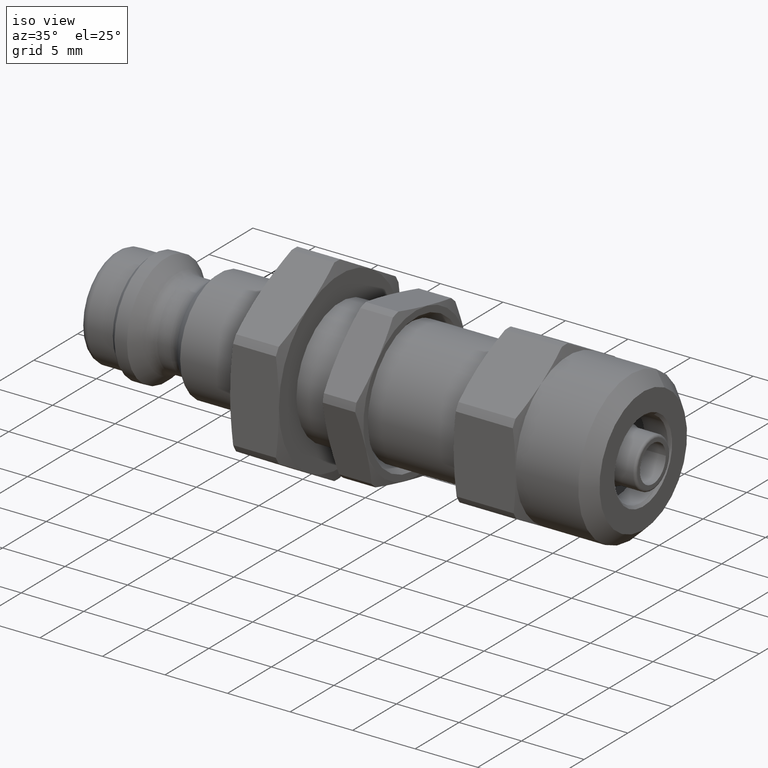
[diagram: clean part render]
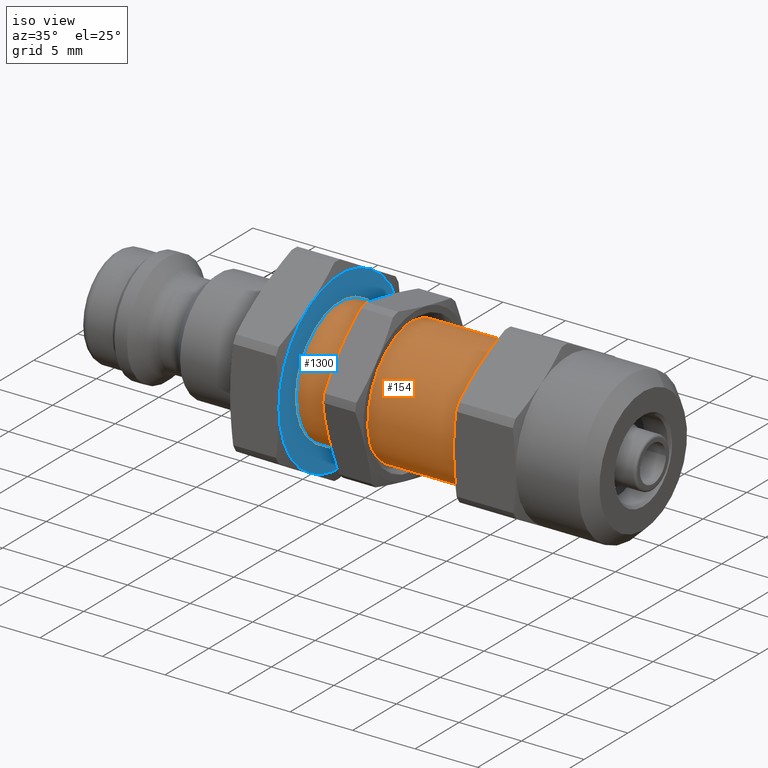
[diagram: same view with the hole feature highlighted: cylindrical wall and planar end face, labeled with their STEP entity ids]
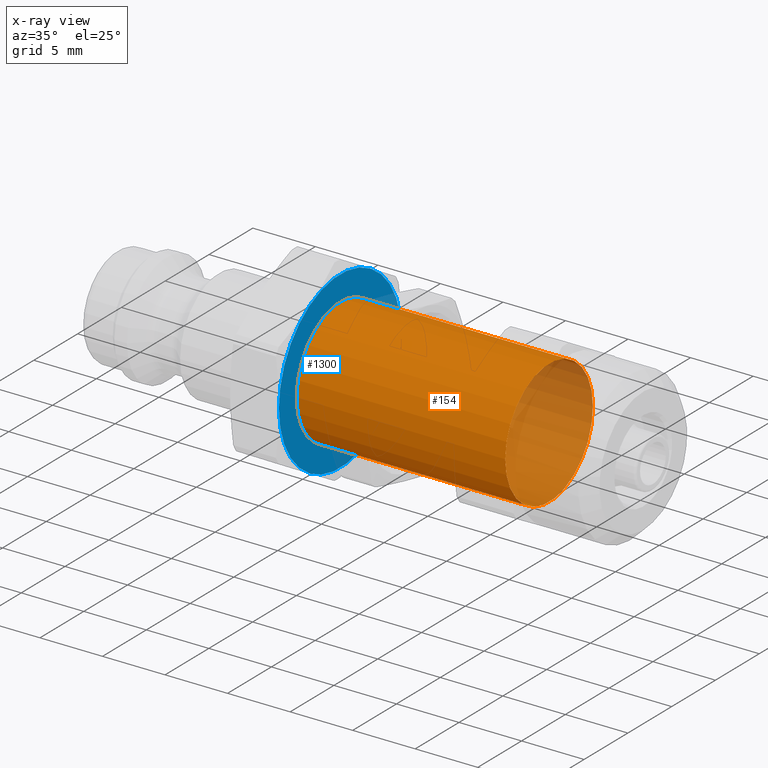
[diagram: x-ray of the same camera — body ghosted, the hole faces saturated]
A machine part, iso view. The highlighted faces form one hole feature of diameter 10 mm: the cylindrical wall (entity #154, orange) and its adjacent planar end face (entity #1300, blue) — they share a circular edge in the B-rep.
The next image is the same camera in x-ray (body ghosted, the hole faces saturated) — the bore reads through the body.
Wall:
#112=CARTESIAN_POINT('',(34.700000000000003,5.000000000000004,6.123234E-016));
#113=VERTEX_POINT('',#112);
#114=CARTESIAN_POINT('',(34.700000000000003,0.0,0.0));
#115=DIRECTION('',(1.0,0.0,0.0));
#116=DIRECTION('',(0.0,-1.0,0.0));
#117=AXIS2_PLACEMENT_3D('',#114,#115,#116);
#118=CIRCLE('',#117,5.000000000000004);
#119=EDGE_CURVE('',#113,#113,#118,.T.);
#135=CARTESIAN_POINT('',(26.699999999999999,0.0,0.0));
#136=DIRECTION('',(1.0,0.0,0.0));
#137=DIRECTION('',(0.0,1.0,0.0));
#138=AXIS2_PLACEMENT_3D('',#135,#136,#137);
#139=CYLINDRICAL_SURFACE('',#138,5.000000000000004);
#140=CARTESIAN_POINT('',(17.999999999999996,4.999999999999998,0.0));
#141=VERTEX_POINT('',#140);
#142=CARTESIAN_POINT('',(17.999999999999996,0.0,0.0));
#143=DIRECTION('',(1.0,0.0,0.0));
#144=DIRECTION('',(0.0,1.0,0.0));
#145=AXIS2_PLACEMENT_3D('',#142,#143,#144);
#146=CIRCLE('',#145,4.999999999999998);
#147=EDGE_CURVE('',#141,#141,#146,.T.);
#148=ORIENTED_EDGE('',*,*,#147,.T.);
#149=EDGE_LOOP('',(#148));
#150=FACE_OUTER_BOUND('',#149,.T.);
#151=ORIENTED_EDGE('',*,*,#119,.F.);
#152=EDGE_LOOP('',(#151));
#153=FACE_BOUND('',#152,.T.);
#154=ADVANCED_FACE('',(#150,#153),#139,.T.);
End face:
#140=CARTESIAN_POINT('',(17.999999999999996,4.999999999999998,0.0));
#141=VERTEX_POINT('',#140);
#142=CARTESIAN_POINT('',(17.999999999999996,0.0,0.0));
#143=DIRECTION('',(1.0,0.0,0.0));
#144=DIRECTION('',(0.0,1.0,0.0));
#145=AXIS2_PLACEMENT_3D('',#142,#143,#144);
#146=CIRCLE('',#145,4.999999999999998);
#147=EDGE_CURVE('',#141,#141,#146,.T.);
#464=CARTESIAN_POINT('',(18.0,3.499999999999996,-6.062177826491075));
#465=VERTEX_POINT('',#464);
#546=CARTESIAN_POINT('',(18.0,-3.500000000000004,-6.06217782649107));
#547=VERTEX_POINT('',#546);
#628=CARTESIAN_POINT('',(18.0,-7.000000000000002,1.165734E-015));
#629=VERTEX_POINT('',#628);
#710=CARTESIAN_POINT('',(18.0,-3.5,6.062177826491073));
#711=VERTEX_POINT('',#710);
#792=CARTESIAN_POINT('',(18.0,3.500000000000001,6.062177826491071));
#793=VERTEX_POINT('',#792);
#852=CARTESIAN_POINT('',(17.999999999999996,7.000000000000001,0.0));
#853=VERTEX_POINT('',#852);
#854=CARTESIAN_POINT('',(17.999999999999996,0.0,0.0));
#855=DIRECTION('',(1.0,0.0,0.0));
#856=DIRECTION('',(0.0,1.0,0.0));
#857=AXIS2_PLACEMENT_3D('',#854,#855,#856);
#858=CIRCLE('',#857,7.000000000000001);
#859=EDGE_CURVE('',#853,#793,#858,.T.);
#892=CARTESIAN_POINT('',(17.999999999999996,0.0,0.0));
#893=DIRECTION('',(1.0,0.0,0.0));
#894=DIRECTION('',(0.0,1.0,0.0));
#895=AXIS2_PLACEMENT_3D('',#892,#893,#894);
#896=CIRCLE('',#895,7.000000000000001);
#897=EDGE_CURVE('',#793,#711,#896,.T.);
#916=CARTESIAN_POINT('',(17.999999999999996,0.0,0.0));
#917=DIRECTION('',(1.0,0.0,0.0));
#918=DIRECTION('',(0.0,1.0,0.0));
#919=AXIS2_PLACEMENT_3D('',#916,#917,#918);
#920=CIRCLE('',#919,7.000000000000001);
#921=EDGE_CURVE('',#711,#629,#920,.T.);
#940=CARTESIAN_POINT('',(17.999999999999996,0.0,0.0));
#941=DIRECTION('',(1.0,0.0,0.0));
#942=DIRECTION('',(0.0,1.0,0.0));
#943=AXIS2_PLACEMENT_3D('',#940,#941,#942);
#944=CIRCLE('',#943,7.000000000000001);
#945=EDGE_CURVE('',#629,#547,#944,.T.);
#986=CARTESIAN_POINT('',(17.999999999999996,0.0,0.0));
#987=DIRECTION('',(1.0,0.0,0.0));
#988=DIRECTION('',(0.0,1.0,0.0));
#989=AXIS2_PLACEMENT_3D('',#986,#987,#988);
#990=CIRCLE('',#989,7.000000000000001);
#991=EDGE_CURVE('',#465,#853,#990,.T.);
#1002=CARTESIAN_POINT('',(17.999999999999996,0.0,0.0));
#1003=DIRECTION('',(1.0,0.0,0.0));
#1004=DIRECTION('',(0.0,1.0,0.0));
#1005=AXIS2_PLACEMENT_3D('',#1002,#1003,#1004);
#1006=CIRCLE('',#1005,7.000000000000001);
#1007=EDGE_CURVE('',#547,#465,#1006,.T.);
#1284=CARTESIAN_POINT('',(17.999999999999996,6.0,0.0));
#1285=DIRECTION('',(1.0,0.0,0.0));
#1286=DIRECTION('',(0.0,0.0,-1.0));
#1287=AXIS2_PLACEMENT_3D('',#1284,#1285,#1286);
#1288=PLANE('',#1287);
#1289=ORIENTED_EDGE('',*,*,#859,.T.);
#1290=ORIENTED_EDGE('',*,*,#897,.T.);
#1291=ORIENTED_EDGE('',*,*,#921,.T.);
#1292=ORIENTED_EDGE('',*,*,#945,.T.);
#1293=ORIENTED_EDGE('',*,*,#1007,.T.);
#1294=ORIENTED_EDGE('',*,*,#991,.T.);
#1295=EDGE_LOOP('',(#1289,#1290,#1291,#1292,#1293,#1294));
#1296=FACE_OUTER_BOUND('',#1295,.T.);
#1297=ORIENTED_EDGE('',*,*,#147,.F.);
#1298=EDGE_LOOP('',(#1297));
#1299=FACE_BOUND('',#1298,.T.);
#1300=ADVANCED_FACE('',(#1296,#1299),#1288,.T.);